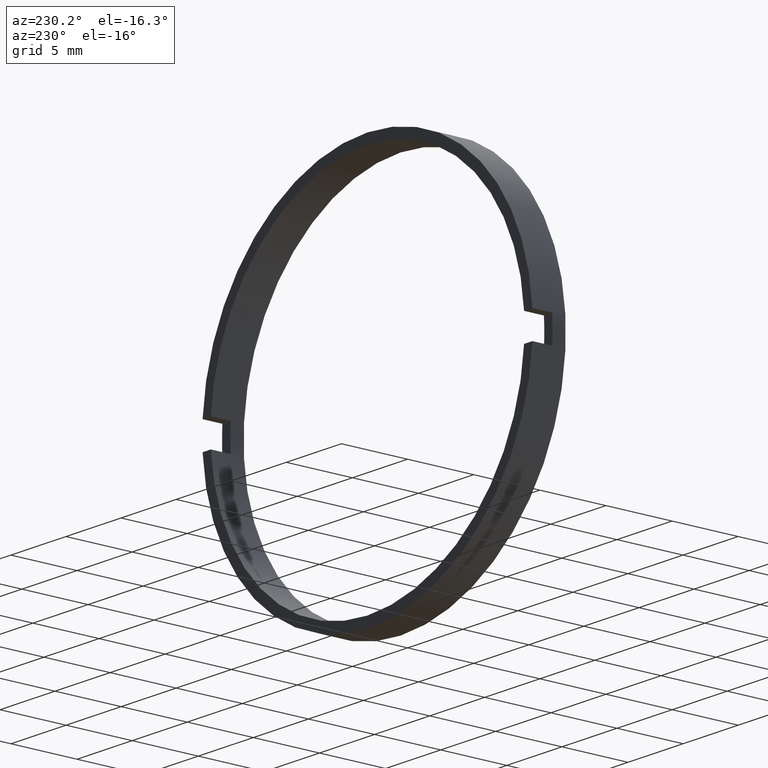
[diagram: clean part render]
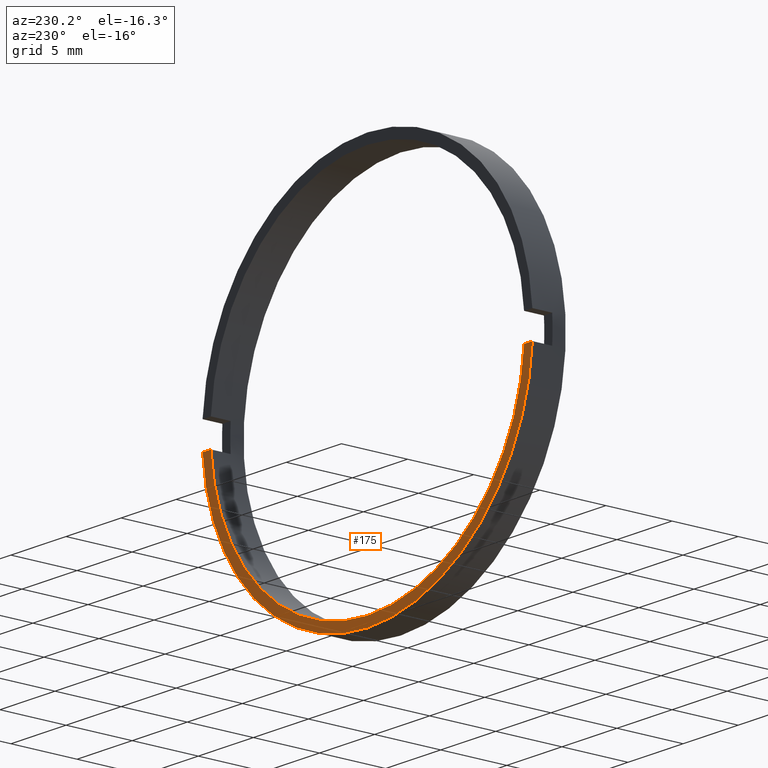
[diagram: same view with one face highlighted and labeled with its STEP entity id]
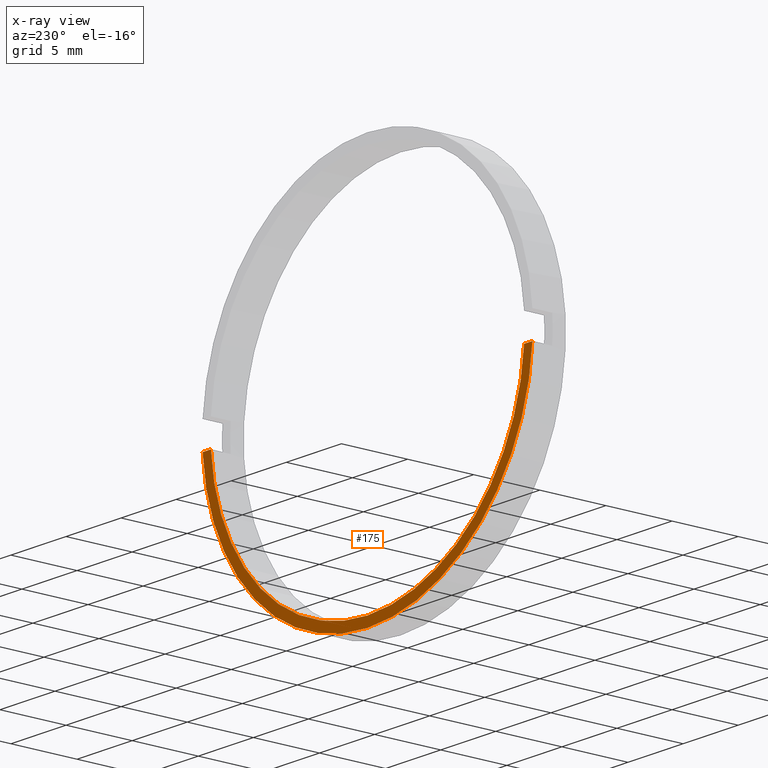
[diagram: x-ray of the same camera — body ghosted, the highlighted face saturated]
A machine part, auxiliary view. The second image highlights one B-rep face of the part: STEP entity #175.
The next image is the same camera in x-ray: the body ghosted, the highlighted face saturated — about 0% of this face is hidden behind the body in this view.
In plain terms, the highlighted planar face has unit normal (0, -1, 0).
Its self-contained STEP definition (entity closure, byte-faithful):
#6 = ORIENTED_EDGE ( 'NONE', *, *, #372, .T. ) ;
#23 = VERTEX_POINT ( 'NONE', #315 ) ;
#29 = VERTEX_POINT ( 'NONE', #399 ) ;
#32 = VERTEX_POINT ( 'NONE', #247 ) ;
#35 = AXIS2_PLACEMENT_3D ( 'NONE', #459, #264, #149 ) ;
#41 = EDGE_CURVE ( 'NONE', #23, #32, #469, .T. ) ;
#42 = ORIENTED_EDGE ( 'NONE', *, *, #322, .F. ) ;
#44 = CIRCLE ( 'NONE', #57, 15.00000000000000700 ) ;
#49 = DIRECTION ( 'NONE',  ( 0.0000000000000000000, -0.0000000000000000000, -1.000000000000000000 ) ) ;
#52 = DIRECTION ( 'NONE',  ( 0.0000000000000000000, 0.0000000000000000000, 1.000000000000000000 ) ) ;
#54 = CARTESIAN_POINT ( 'NONE',  ( -26.85254027261461800, -1.964249787179430900, -1.000000000000000000 ) ) ;
#57 = AXIS2_PLACEMENT_3D ( 'NONE', #334, #359, #52 ) ;
#73 = FACE_OUTER_BOUND ( 'NONE', #395, .T. ) ;
#105 = DIRECTION ( 'NONE',  ( 0.0000000000000000000, 0.0000000000000000000, 1.000000000000000000 ) ) ;
#111 = AXIS2_PLACEMENT_3D ( 'NONE', #185, #217, #222 ) ;
#113 = LINE ( 'NONE', #285, #336 ) ;
#120 = PLANE ( 'NONE',  #317 ) ;
#124 = CARTESIAN_POINT ( 'NONE',  ( 14.25000000000000700, -1.964249787179430900, 0.0000000000000000000 ) ) ;
#129 = ORIENTED_EDGE ( 'NONE', *, *, #294, .F. ) ;
#135 = DIRECTION ( 'NONE',  ( -1.000000000000000000, -0.0000000000000000000, -0.0000000000000000000 ) ) ;
#141 = VECTOR ( 'NONE', #284, 1000.000000000000000 ) ;
#146 = DIRECTION ( 'NONE',  ( -0.0000000000000000000, 1.000000000000000000, -0.0000000000000000000 ) ) ;
#149 = DIRECTION ( 'NONE',  ( 0.0000000000000000000, 0.0000000000000000000, 1.000000000000000000 ) ) ;
#157 = VERTEX_POINT ( 'NONE', #309 ) ;
#160 = CIRCLE ( 'NONE', #271, 15.00000000000000700 ) ;
#162 = VERTEX_POINT ( 'NONE', #306 ) ;
#171 = CIRCLE ( 'NONE', #35, 14.25000000000000700 ) ;
#175 = ADVANCED_FACE ( 'NONE', ( #73 ), #120, .F. ) ;
#185 = CARTESIAN_POINT ( 'NONE',  ( 0.0000000000000000000, -1.964249787179434000, 0.0000000000000000000 ) ) ;
#206 = DIRECTION ( 'NONE',  ( 0.0000000000000000000, -1.000000000000000000, 0.0000000000000000000 ) ) ;
#210 = CARTESIAN_POINT ( 'NONE',  ( -14.96662954709577600, -1.964249787179430900, -1.000000000000000000 ) ) ;
#217 = DIRECTION ( 'NONE',  ( -0.0000000000000000000, 1.000000000000000000, -0.0000000000000000000 ) ) ;
#222 = DIRECTION ( 'NONE',  ( 0.0000000000000000000, 0.0000000000000000000, 1.000000000000000000 ) ) ;
#247 = CARTESIAN_POINT ( 'NONE',  ( 14.21486897582950300, -1.964249787179434000, -0.9999999999999995600 ) ) ;
#264 = DIRECTION ( 'NONE',  ( -0.0000000000000000000, 1.000000000000000000, -0.0000000000000000000 ) ) ;
#271 = AXIS2_PLACEMENT_3D ( 'NONE', #323, #146, #105 ) ;
#272 = ORIENTED_EDGE ( 'NONE', *, *, #496, .F. ) ;
#284 = DIRECTION ( 'NONE',  ( -1.000000000000000000, -0.0000000000000000000, -0.0000000000000000000 ) ) ;
#285 = CARTESIAN_POINT ( 'NONE',  ( -26.85254027261461800, -1.964249787179430900, -1.000000000000000000 ) ) ;
#294 = EDGE_CURVE ( 'NONE', #32, #162, #493, .T. ) ;
#301 = EDGE_CURVE ( 'NONE', #157, #498, #160, .T. ) ;
#306 = CARTESIAN_POINT ( 'NONE',  ( 1.745121688784979000E-015, -1.964249787179434000, -14.25000000000000700 ) ) ;
#309 = CARTESIAN_POINT ( 'NONE',  ( 1.836970198721030800E-015, -1.964249787179434000, -15.00000000000000700 ) ) ;
#310 = ORIENTED_EDGE ( 'NONE', *, *, #301, .T. ) ;
#315 = CARTESIAN_POINT ( 'NONE',  ( 14.96662954709576000, -1.964249787179430900, -1.000000000000000000 ) ) ;
#317 = AXIS2_PLACEMENT_3D ( 'NONE', #124, #206, #49 ) ;
#322 = EDGE_CURVE ( 'NONE', #162, #29, #171, .T. ) ;
#323 = CARTESIAN_POINT ( 'NONE',  ( 0.0000000000000000000, -1.964249787179434000, 0.0000000000000000000 ) ) ;
#334 = CARTESIAN_POINT ( 'NONE',  ( 0.0000000000000000000, -1.964249787179434000, 0.0000000000000000000 ) ) ;
#336 = VECTOR ( 'NONE', #135, 1000.000000000000000 ) ;
#359 = DIRECTION ( 'NONE',  ( -0.0000000000000000000, 1.000000000000000000, -0.0000000000000000000 ) ) ;
#372 = EDGE_CURVE ( 'NONE', #23, #157, #44, .T. ) ;
#395 = EDGE_LOOP ( 'NONE', ( #6, #310, #272, #42, #129, #408 ) ) ;
#399 = CARTESIAN_POINT ( 'NONE',  ( -14.21486897582950300, -1.964249787179434000, -0.9999999999999995600 ) ) ;
#408 = ORIENTED_EDGE ( 'NONE', *, *, #41, .F. ) ;
#459 = CARTESIAN_POINT ( 'NONE',  ( 0.0000000000000000000, -1.964249787179434000, 0.0000000000000000000 ) ) ;
#469 = LINE ( 'NONE', #54, #141 ) ;
#493 = CIRCLE ( 'NONE', #111, 14.25000000000000700 ) ;
#496 = EDGE_CURVE ( 'NONE', #29, #498, #113, .T. ) ;
#498 = VERTEX_POINT ( 'NONE', #210 ) ;